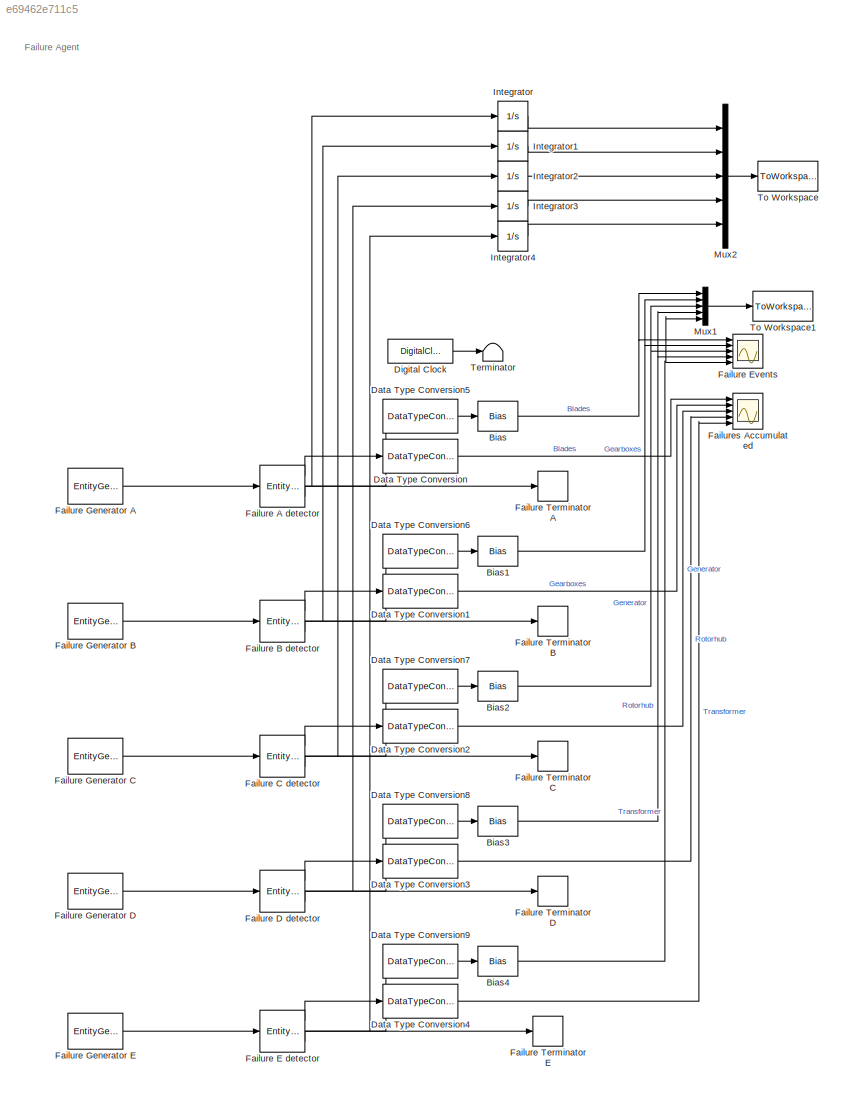
MODEL slx_e69462e711c5
KIND model
CONFIG AbsTol = auto
CONFIG EnableMultiTasking = off
CONFIG FixedStep = auto
CONFIG MaxStep = auto
CONFIG MinStep = auto
CONFIG RelTol = 1e-3
CONFIG SampleTimeConstraint = Unconstrained
CONFIG Solver = VariableStepAuto
CONFIG SolverName = VariableStepAuto
CONFIG StartTime = 0.0
CONFIG StopTime = n_T
BLOCK [Bias] Bias
  Bias = 0.0
  Commented = through
  SaturateOnIntegerOverflow = off
BLOCK [Bias] Bias1
  Bias = 1
  Commented = through
  SaturateOnIntegerOverflow = off
BLOCK [Bias] Bias2
  Bias = 2
  Commented = through
  SaturateOnIntegerOverflow = off
BLOCK [Bias] Bias3
  Bias = 3
  Commented = through
  SaturateOnIntegerOverflow = off
BLOCK [Bias] Bias4
  Bias = 4
  Commented = through
  SaturateOnIntegerOverflow = off
BLOCK [DataTypeConversion] Data Type Conversion
  RndMeth = Floor
  SaturateOnIntegerOverflow = off
BLOCK [DataTypeConversion] Data Type Conversion1
  RndMeth = Floor
  SaturateOnIntegerOverflow = off
BLOCK [DataTypeConversion] Data Type Conversion2
  RndMeth = Floor
  SaturateOnIntegerOverflow = off
BLOCK [DataTypeConversion] Data Type Conversion3
  RndMeth = Floor
  SaturateOnIntegerOverflow = off
BLOCK [DataTypeConversion] Data Type Conversion4
  RndMeth = Floor
  SaturateOnIntegerOverflow = off
BLOCK [DataTypeConversion] Data Type Conversion5
  RndMeth = Floor
  SaturateOnIntegerOverflow = off
BLOCK [DataTypeConversion] Data Type Conversion6
  RndMeth = Floor
  SaturateOnIntegerOverflow = off
BLOCK [DataTypeConversion] Data Type Conversion7
  RndMeth = Floor
  SaturateOnIntegerOverflow = off
BLOCK [DataTypeConversion] Data Type Conversion8
  RndMeth = Floor
  SaturateOnIntegerOverflow = off
BLOCK [DataTypeConversion] Data Type Conversion9
  RndMeth = Floor
  SaturateOnIntegerOverflow = off
BLOCK [DigitalClock] Digital Clock
BLOCK [EntityServer] Failure A detector
  Capacity = 1
  InputPortMap = u2
  InputPortMessageModes = m
  NumberEntitiesDeparted = on
  NumberEntitiesInBlock = on
  OutputPortMap = o0,o1,o9
  OutputPortMessageModes = n,n,m
  Ports = [1, 3]
BLOCK [EntityServer] Failure B detector
  Capacity = 1
  InputPortMap = u2
  InputPortMessageModes = m
  NumberEntitiesDeparted = on
  NumberEntitiesInBlock = on
  OutputPortMap = o0,o1,o9
  OutputPortMessageModes = n,n,m
  Ports = [1, 3]
BLOCK [EntityServer] Failure C detector
  Capacity = 1
  InputPortMap = u2
  InputPortMessageModes = m
  NumberEntitiesDeparted = on
  NumberEntitiesInBlock = on
  OutputPortMap = o0,o1,o9
  OutputPortMessageModes = n,n,m
  Ports = [1, 3]
BLOCK [EntityServer] Failure D detector
  Capacity = 1
  InputPortMap = u2
  InputPortMessageModes = m
  NumberEntitiesDeparted = on
  NumberEntitiesInBlock = on
  OutputPortMap = o0,o1,o9
  OutputPortMessageModes = n,n,m
  Ports = [1, 3]
BLOCK [EntityServer] Failure E detector
  Capacity = 1
  InputPortMap = u2
  InputPortMessageModes = m
  NumberEntitiesDeparted = on
  NumberEntitiesInBlock = on
  OutputPortMap = o0,o1,o9
  OutputPortMessageModes = n,n,m
  Ports = [1, 3]
BLOCK [Scope] Failure Events
  Floating = off
  NumInputPorts = 5
  Ports = [5]
  ScopeSpecificationString = Simulink.scopes.TimeScopeBlockCfg('CurrentConfiguration', extmgr.ConfigurationSet(extmgr.Configuration('Core','General UI',true),extmgr.Configuration('Core','Source UI',true),extmgr.Configuration('Sources','WiredSimulink',true,'DataLoggingVariableName','ScopeData1'),extmgr.Configuration('Visuals','Time Domain',true,'SerializedDisplays',{struct('MinYLimReal','-0.125','MaxYLimReal','1.125','YLabelRe...<+1587ch>
BLOCK [EntityGenerator] Failure Generator A
  AttributeName = data
  EntityType = Structured
  EntityTypeName = Blade
  GenerateEntityAtSimulationStart = off
  IntergenerationTimeAction = persistent rngInit;\nif isempty(rngInit)\n    seed = series_seed;\n    rng(seed);\n    rngInit = true;\nend\n\n% Pattern: Gaussian (normal) distribution\n% m: Mean, d: Standard deviation\nm = n_T/WT_n/F_blades(1,i); d = n_T/WT_n/F_blades(2,i);\ndt = abs(m + d * randn);
  OutputPortMap = o3
  OutputPortMessageModes = m
  Period = FM(1,1)*WT_n
  Ports = [0, 1]
  TimeSource = MATLAB action
BLOCK [EntityGenerator] Failure Generator B
  EntityType = Structured
  EntityTypeName = Gearbox
  GenerateEntityAtSimulationStart = off
  IntergenerationTimeAction = persistent rngInit;\nif isempty(rngInit)\n    seed = series_seed;\n    rng(seed);\n    rngInit = true;\nend\n\n% Pattern: Gaussian (normal) distribution\n% m: Mean, d: Standard deviation\nm = n_T/WT_n/F_gearbox(1,i); d = n_T/WT_n/F_gearbox(2,i);\ndt = abs(m + d * randn);
  OutputPortMap = o3
  OutputPortMessageModes = m
  Ports = [0, 1]
  TimeSource = MATLAB action
BLOCK [EntityGenerator] Failure Generator C
  EntityType = Structured
  EntityTypeName = Generator
  GenerateEntityAtSimulationStart = off
  IntergenerationTimeAction = persistent rngInit;\nif isempty(rngInit)\n    seed = series_seed;\n    rng(seed);\n    rngInit = true;\nend\n\n% Pattern: Gaussian (normal) distribution\n% m: Mean, d: Standard deviation\nm = n_T/WT_n/F_generator(1,i); d = n_T/WT_n/F_generator(2,i);\ndt = abs(m + d * randn);
  OutputPortMap = o3
  OutputPortMessageModes = m
  Period = 99999999
  Ports = [0, 1]
  TimeSource = MATLAB action
BLOCK [EntityGenerator] Failure Generator D
  EntityType = Structured
  EntityTypeName = Rotorhub
  GenerateEntityAtSimulationStart = off
  IntergenerationTimeAction = persistent rngInit;\nif isempty(rngInit)\n    seed = series_seed;\n    rng(seed);\n    rngInit = true;\nend\n\n% Pattern: Gaussian (normal) distribution\n% m: Mean, d: Standard deviation\nm = n_T/WT_n/F_rotorhub(1,i); d = n_T/WT_n/F_rotorhub(2,i);\ndt = abs(m + d * randn);
  OutputPortMap = o3
  OutputPortMessageModes = m
  Period = 9999999
  Ports = [0, 1]
  TimeSource = MATLAB action
BLOCK [EntityGenerator] Failure Generator E
  EntityType = Structured
  EntityTypeName = Transformer
  GenerateEntityAtSimulationStart = off
  IntergenerationTimeAction = persistent rngInit;\nif isempty(rngInit)\n    seed = series_seed;\n    rng(seed);\n    rngInit = true;\nend\n\n% Pattern: Gaussian (normal) distribution\n% m: Mean, d: Standard deviation\nm = n_T/WT_n/F_transformer(1,i); d = n_T/WT_n/F_transformer(2,i);\ndt = abs(m + d * randn);
  OutputPortMap = o3
  OutputPortMessageModes = m
  Period = 99999999
  Ports = [0, 1]
  TimeSource = MATLAB action
BLOCK [EntityTerminator] Failure Terminator A 
  InputPortMap = u0
  InputPortMessageModes = m
  Ports = [1]
BLOCK [EntityTerminator] Failure Terminator B
  InputPortMap = u0
  InputPortMessageModes = m
  Ports = [1]
BLOCK [EntityTerminator] Failure Terminator C
  InputPortMap = u0
  InputPortMessageModes = m
  Ports = [1]
BLOCK [EntityTerminator] Failure Terminator D
  InputPortMap = u0
  InputPortMessageModes = m
  Ports = [1]
BLOCK [EntityTerminator] Failure Terminator E
  InputPortMap = u0
  InputPortMessageModes = m
  Ports = [1]
BLOCK [Scope] Failures Accumulated
  Floating = off
  NumInputPorts = 5
  Ports = [5]
  ScopeSpecificationString = Simulink.scopes.TimeScopeBlockCfg('CurrentConfiguration', extmgr.ConfigurationSet(extmgr.Configuration('Core','General UI',true,'FigureColor',[1 1 1]),extmgr.Configuration('Core','Source UI',true),extmgr.Configuration('Sources','WiredSimulink',true),extmgr.Configuration('Visuals','Time Domain',true,'SerializedDisplays',{struct('MinYLimReal','-6.5','MaxYLimReal','58.5','YLabelReal','','MinYLimMag',...<+2049ch>
BLOCK [Integrator] Integrator
  Ports = [1, 1]
BLOCK [Integrator] Integrator1
  Ports = [1, 1]
BLOCK [Integrator] Integrator2
  Ports = [1, 1]
BLOCK [Integrator] Integrator3
  Ports = [1, 1]
BLOCK [Integrator] Integrator4
  Ports = [1, 1]
BLOCK [Mux] Mux1
  DisplayOption = bar
  Inputs = 5
  Ports = [5, 1]
BLOCK [Mux] Mux2
  DisplayOption = bar
  Inputs = 5
  Ports = [5, 1]
BLOCK [Terminator] Terminator
BLOCK [ToWorkspace] To Workspace
  FixptAsFi = on
  MaxDataPoints = inf
  Ports = [1]
  SampleTime = 1
  Save2DSignal = 3-D array (concatenate along third dimension)
  SaveFormat = Timeseries
  VariableName = Failure_data
BLOCK [ToWorkspace] To Workspace1
  FixptAsFi = on
  MaxDataPoints = inf
  Ports = [1]
  SampleTime = 1
  Save2DSignal = 3-D array (concatenate along third dimension)
  SaveFormat = Timeseries
  VariableName = Failure_events
ANNOTATION (root): Failure Agent
NET Bias1:1 -> Failure Events:2, Mux1:2
NET Bias2:1 -> Failure Events:3, Mux1:3
NET Bias3:1 -> Failure Events:4, Mux1:4
NET Bias4:1 -> Failure Events:5, Mux1:5
NET Bias:1 -> Failure Events:1, Mux1:1
LINE Data Type Conversion1:1 -> Failures Accumulated:2
LINE Data Type Conversion2:1 -> Failures Accumulated:3
LINE Data Type Conversion3:1 -> Failures Accumulated:4
LINE Data Type Conversion4:1 -> Failures Accumulated:5
LINE Data Type Conversion5:1 -> Bias:1
LINE Data Type Conversion6:1 -> Bias1:1
LINE Data Type Conversion7:1 -> Bias2:1
LINE Data Type Conversion8:1 -> Bias3:1
LINE Data Type Conversion9:1 -> Bias4:1
LINE Data Type Conversion:1 -> Failures Accumulated:1
LINE Digital Clock:1 -> Terminator:1
LINE Failure A detector:1 -> Data Type Conversion:1
NET Failure A detector:2 -> Data Type Conversion5:1, Integrator:1
LINE Failure A detector:3 -> Failure Terminator A :1
LINE Failure B detector:1 -> Data Type Conversion1:1
NET Failure B detector:2 -> Data Type Conversion6:1, Integrator1:1
LINE Failure B detector:3 -> Failure Terminator B:1
LINE Failure C detector:1 -> Data Type Conversion2:1
NET Failure C detector:2 -> Data Type Conversion7:1, Integrator2:1
LINE Failure C detector:3 -> Failure Terminator C:1
LINE Failure D detector:1 -> Data Type Conversion3:1
NET Failure D detector:2 -> Data Type Conversion8:1, Integrator3:1
LINE Failure D detector:3 -> Failure Terminator D:1
LINE Failure E detector:1 -> Data Type Conversion4:1
NET Failure E detector:2 -> Data Type Conversion9:1, Integrator4:1
LINE Failure E detector:3 -> Failure Terminator E:1
LINE Failure Generator A:1 -> Failure A detector:1
LINE Failure Generator B:1 -> Failure B detector:1
LINE Failure Generator C:1 -> Failure C detector:1
LINE Failure Generator D:1 -> Failure D detector:1
LINE Failure Generator E:1 -> Failure E detector:1
LINE Integrator1:1 -> Mux2:2
LINE Integrator2:1 -> Mux2:3
LINE Integrator3:1 -> Mux2:4
LINE Integrator4:1 -> Mux2:5
LINE Integrator:1 -> Mux2:1
LINE Mux1:1 -> To Workspace1:1
LINE Mux2:1 -> To Workspace:1
note: NET lines group one-source signal fan-out (src -> all destinations, sorted); 1:1 wires keep LINE
